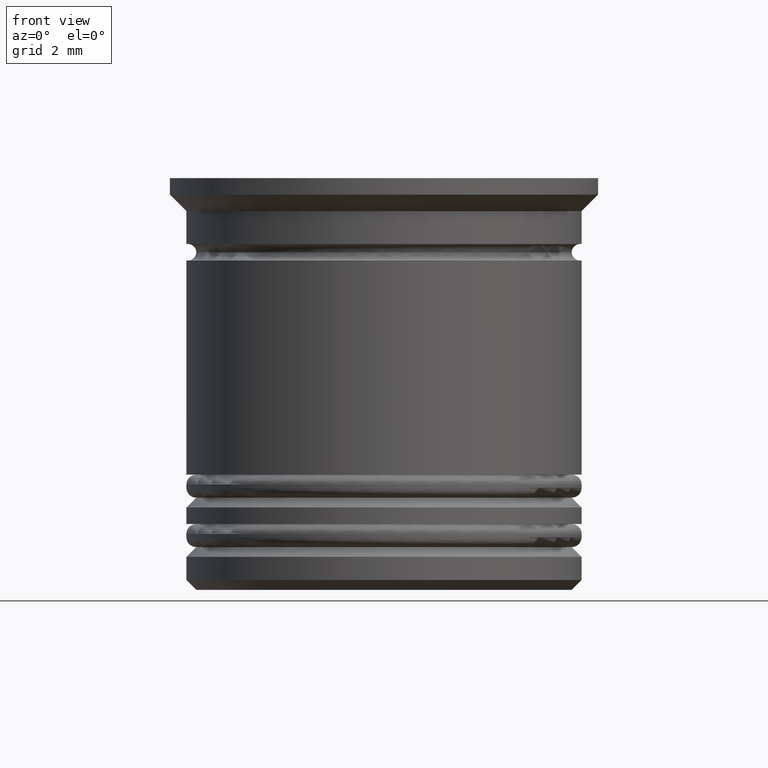
[diagram: clean part render]
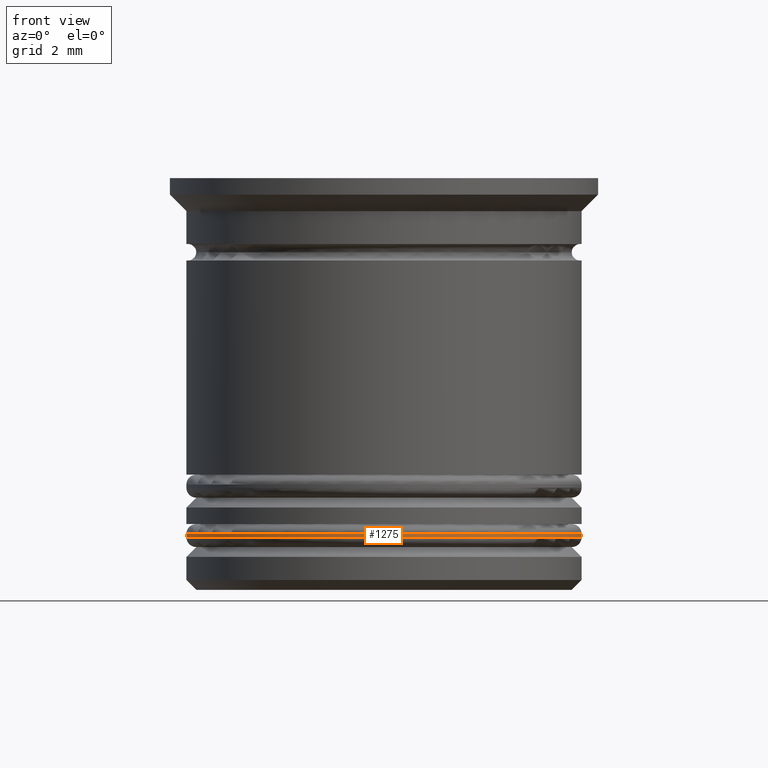
[diagram: same view with one face highlighted and labeled with its STEP entity id]
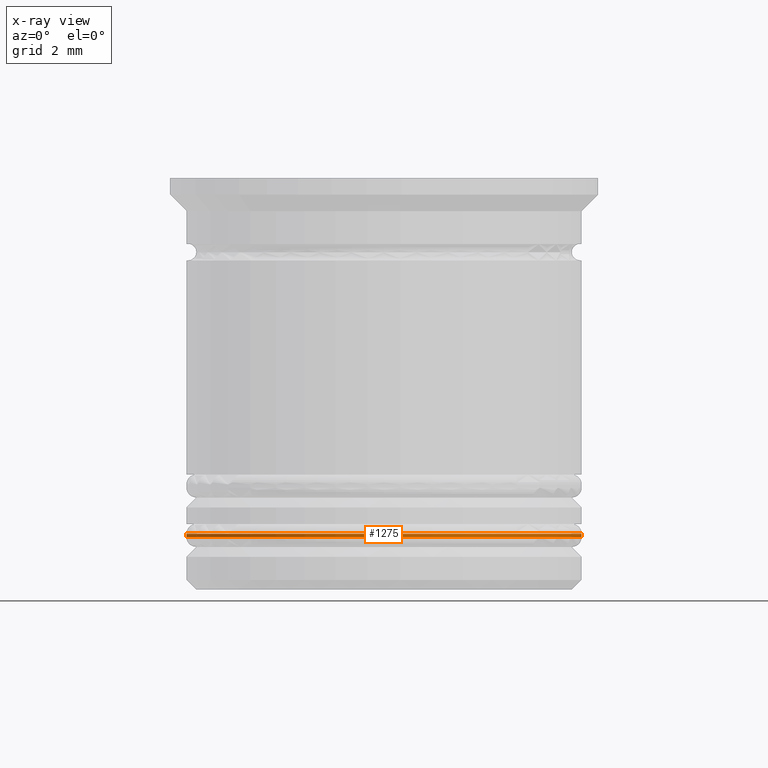
[diagram: x-ray of the same camera — body ghosted, the highlighted face saturated]
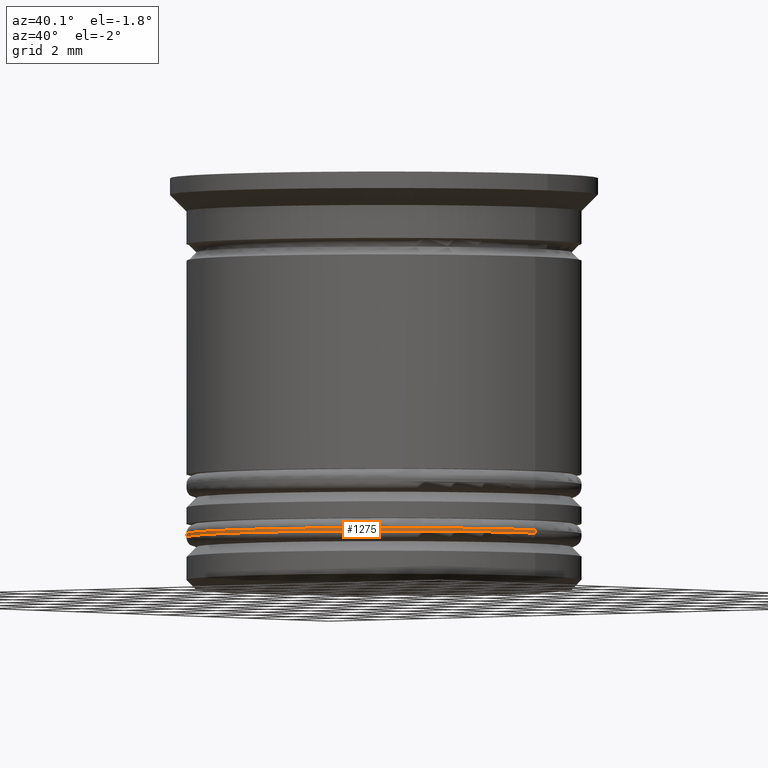
[diagram: same view with one face highlighted and labeled with its STEP entity id]
A machine part, front view. The second image highlights one B-rep face of the part: STEP entity #1275.
The next image is the same camera in x-ray: the body ghosted, the highlighted face saturated — about 0% of this face is hidden behind the body in this view.
A second angle (auxiliary view) of the same face is appended — the face is thin or edge-on in the first view.
In plain terms, the highlighted cylindrical surface (partial cylindrical patch) has radius 6 mm, axis along (-0, -0, 1).
Its self-contained STEP definition (entity closure, byte-faithful):
#7 = CARTESIAN_POINT ( 'NONE',  ( 0.000000000000000000, 0.000000000000000000, -10.90000000000000391 ) ) ;
#52 = ORIENTED_EDGE ( 'NONE', *, *, #1363, .T. ) ;
#136 = DIRECTION ( 'NONE',  ( -0.000000000000000000, -0.000000000000000000, 1.000000000000000000 ) ) ;
#161 = CYLINDRICAL_SURFACE ( 'NONE', #1664, 6.000000000000002665 ) ;
#246 = CIRCLE ( 'NONE', #435, 6.000000000000002665 ) ;
#321 = DIRECTION ( 'NONE',  ( -0.000000000000000000, -0.000000000000000000, 1.000000000000000000 ) ) ;
#343 = CARTESIAN_POINT ( 'NONE',  ( -6.000000000000002665, 7.347880794884122694E-16, -10.80000000000000071 ) ) ;
#364 = LINE ( 'NONE', #396, #1027 ) ;
#396 = CARTESIAN_POINT ( 'NONE',  ( -6.000000000000002665, 7.347880794884122694E-16, -28.17056274847715613 ) ) ;
#435 = AXIS2_PLACEMENT_3D ( 'NONE', #7, #816, #1710 ) ;
#446 = CARTESIAN_POINT ( 'NONE',  ( -6.000000000000002665, 7.347880794884122694E-16, -10.90000000000000391 ) ) ;
#480 = EDGE_CURVE ( 'NONE', #1725, #1401, #1051, .T. ) ;
#488 = DIRECTION ( 'NONE',  ( 1.000000000000000000, 0.000000000000000000, 0.000000000000000000 ) ) ;
#694 = ORIENTED_EDGE ( 'NONE', *, *, #480, .T. ) ;
#753 = DIRECTION ( 'NONE',  ( 0.000000000000000000, 0.000000000000000000, -1.000000000000000000 ) ) ;
#816 = DIRECTION ( 'NONE',  ( 0.000000000000000000, 0.000000000000000000, 1.000000000000000000 ) ) ;
#836 = ORIENTED_EDGE ( 'NONE', *, *, #1557, .T. ) ;
#893 = VERTEX_POINT ( 'NONE', #446 ) ;
#956 = CIRCLE ( 'NONE', #1917, 6.000000000000002665 ) ;
#1027 = VECTOR ( 'NONE', #1280, 1000.000000000000000 ) ;
#1051 = LINE ( 'NONE', #1080, #1874 ) ;
#1080 = CARTESIAN_POINT ( 'NONE',  ( 6.000000000000002665, 0.000000000000000000, -28.17056274847715613 ) ) ;
#1275 = ADVANCED_FACE ( 'NONE', ( #1743 ), #161, .T. ) ;
#1280 = DIRECTION ( 'NONE',  ( -0.000000000000000000, -0.000000000000000000, 1.000000000000000000 ) ) ;
#1363 = EDGE_CURVE ( 'NONE', #893, #1725, #246, .T. ) ;
#1401 = VERTEX_POINT ( 'NONE', #1416 ) ;
#1416 = CARTESIAN_POINT ( 'NONE',  ( 6.000000000000002665, 0.000000000000000000, -10.80000000000000071 ) ) ;
#1461 = EDGE_CURVE ( 'NONE', #893, #1614, #364, .T. ) ;
#1513 = CARTESIAN_POINT ( 'NONE',  ( 0.000000000000000000, 0.000000000000000000, -10.80000000000000071 ) ) ;
#1557 = EDGE_CURVE ( 'NONE', #1401, #1614, #956, .T. ) ;
#1566 = CARTESIAN_POINT ( 'NONE',  ( 0.000000000000000000, 0.000000000000000000, -28.17056274847715613 ) ) ;
#1614 = VERTEX_POINT ( 'NONE', #343 ) ;
#1664 = AXIS2_PLACEMENT_3D ( 'NONE', #1566, #321, #488 ) ;
#1704 = EDGE_LOOP ( 'NONE', ( #1711, #52, #694, #836 ) ) ;
#1710 = DIRECTION ( 'NONE',  ( 1.000000000000000000, 0.000000000000000000, 0.000000000000000000 ) ) ;
#1711 = ORIENTED_EDGE ( 'NONE', *, *, #1461, .F. ) ;
#1725 = VERTEX_POINT ( 'NONE', #1766 ) ;
#1743 = FACE_OUTER_BOUND ( 'NONE', #1704, .T. ) ;
#1766 = CARTESIAN_POINT ( 'NONE',  ( 6.000000000000002665, 0.000000000000000000, -10.90000000000000391 ) ) ;
#1874 = VECTOR ( 'NONE', #136, 1000.000000000000000 ) ;
#1917 = AXIS2_PLACEMENT_3D ( 'NONE', #1513, #753, #1967 ) ;
#1967 = DIRECTION ( 'NONE',  ( -1.000000000000000000, 0.000000000000000000, 0.000000000000000000 ) ) ;